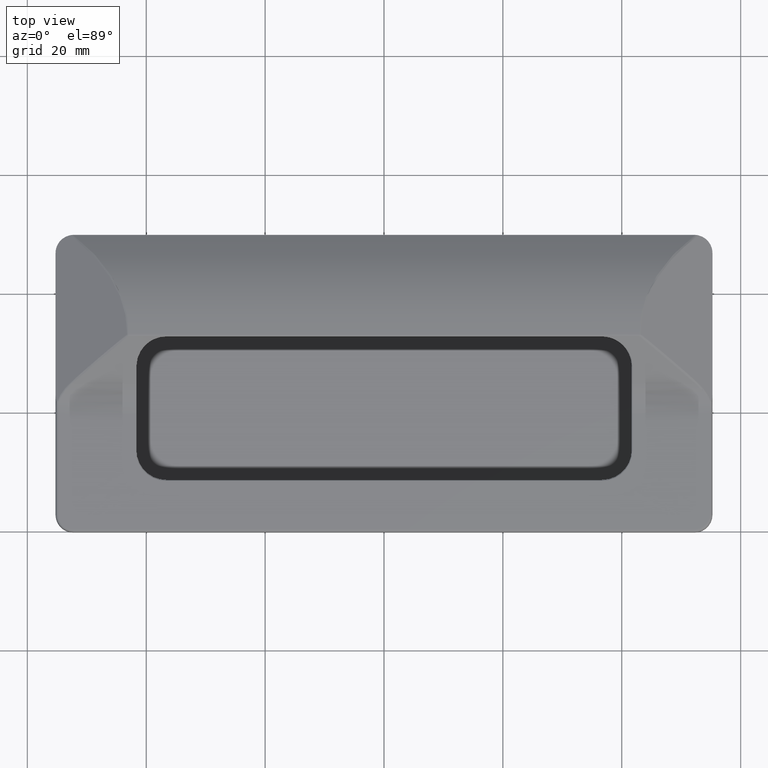
[diagram: clean part render]
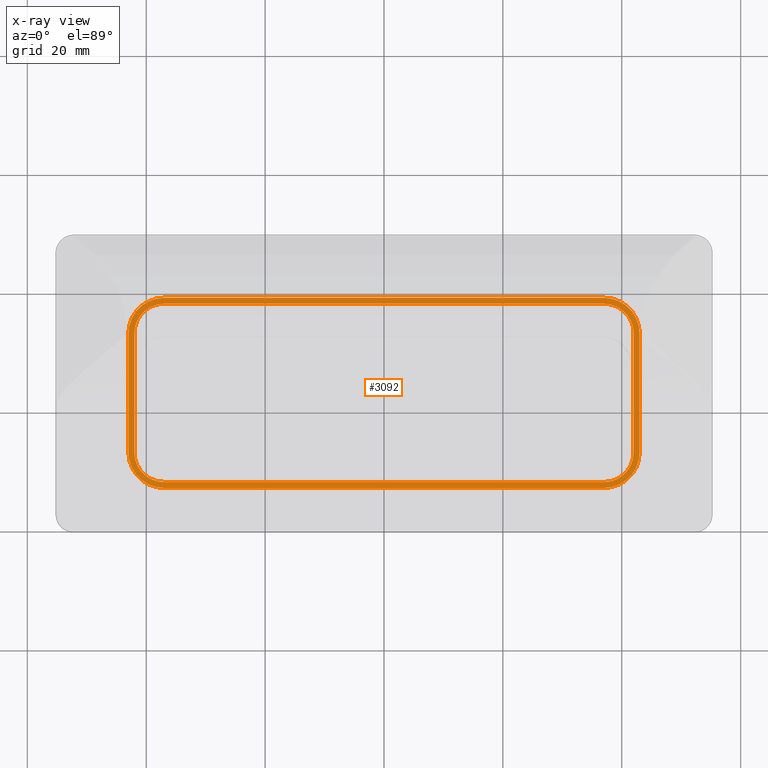
[diagram: x-ray — body ghosted, one internal face saturated and labeled with its STEP entity id]
A machine part, top view, then the same camera in x-ray: the body is ghosted and one INTERNAL B-rep face — a face not visible from any outside direction — is saturated and labeled: STEP entity #3092.
In plain terms, the highlighted planar face has unit normal (-0, 0, 1).
Its self-contained STEP definition (entity closure, byte-faithful):
#48=FACE_BOUND('',#1077,.T.);
#116=PLANE('',#3450);
#354=LINE('',#5610,#592);
#358=LINE('',#5622,#596);
#362=LINE('',#5634,#600);
#366=LINE('',#5645,#604);
#371=LINE('',#5657,#609);
#374=LINE('',#5665,#612);
#377=LINE('',#5673,#615);
#379=LINE('',#5679,#617);
#592=VECTOR('',#4319,20.);
#596=VECTOR('',#4331,74.);
#600=VECTOR('',#4343,20.);
#604=VECTOR('',#4355,74.);
#609=VECTOR('',#4368,20.);
#612=VECTOR('',#4377,74.);
#615=VECTOR('',#4386,20.);
#617=VECTOR('',#4394,74.);
#884=FACE_OUTER_BOUND('',#1076,.T.);
#1076=EDGE_LOOP('',(#2864,#2865,#2866,#2867,#2868,#2869,#2870,#2871));
#1077=EDGE_LOOP('',(#2872,#2873,#2874,#2875,#2876,#2877,#2878,#2879));
#1257=CIRCLE('',#3422,5.);
#1259=CIRCLE('',#3426,5.);
#1261=CIRCLE('',#3430,5.00000000000001);
#1263=CIRCLE('',#3434,5.00000000000001);
#1265=CIRCLE('',#3439,6.);
#1266=CIRCLE('',#3442,6.);
#1267=CIRCLE('',#3445,6.00000000000001);
#1268=CIRCLE('',#3448,6.00000000000001);
#1533=VERTEX_POINT('',#5600);
#1534=VERTEX_POINT('',#5601);
#1537=VERTEX_POINT('',#5609);
#1539=VERTEX_POINT('',#5615);
#1541=VERTEX_POINT('',#5621);
#1543=VERTEX_POINT('',#5627);
#1545=VERTEX_POINT('',#5633);
#1547=VERTEX_POINT('',#5639);
#1549=VERTEX_POINT('',#5649);
#1550=VERTEX_POINT('',#5651);
#1551=VERTEX_POINT('',#5655);
#1552=VERTEX_POINT('',#5659);
#1553=VERTEX_POINT('',#5663);
#1554=VERTEX_POINT('',#5667);
#1555=VERTEX_POINT('',#5671);
#1556=VERTEX_POINT('',#5675);
#1965=EDGE_CURVE('',#1533,#1534,#1257,.T.);
#1969=EDGE_CURVE('',#1537,#1533,#354,.T.);
#1972=EDGE_CURVE('',#1539,#1537,#1259,.T.);
#1975=EDGE_CURVE('',#1541,#1539,#358,.T.);
#1978=EDGE_CURVE('',#1543,#1541,#1261,.T.);
#1981=EDGE_CURVE('',#1545,#1543,#362,.T.);
#1984=EDGE_CURVE('',#1547,#1545,#1263,.T.);
#1987=EDGE_CURVE('',#1534,#1547,#366,.T.);
#1990=EDGE_CURVE('',#1549,#1550,#1265,.T.);
#1993=EDGE_CURVE('',#1551,#1549,#371,.T.);
#1995=EDGE_CURVE('',#1552,#1551,#1266,.T.);
#1997=EDGE_CURVE('',#1553,#1552,#374,.T.);
#1999=EDGE_CURVE('',#1554,#1553,#1267,.T.);
#2001=EDGE_CURVE('',#1555,#1554,#377,.T.);
#2003=EDGE_CURVE('',#1556,#1555,#1268,.T.);
#2004=EDGE_CURVE('',#1550,#1556,#379,.T.);
#2864=ORIENTED_EDGE('',*,*,#2004,.F.);
#2865=ORIENTED_EDGE('',*,*,#1990,.F.);
#2866=ORIENTED_EDGE('',*,*,#1993,.F.);
#2867=ORIENTED_EDGE('',*,*,#1995,.F.);
#2868=ORIENTED_EDGE('',*,*,#1997,.F.);
#2869=ORIENTED_EDGE('',*,*,#1999,.F.);
#2870=ORIENTED_EDGE('',*,*,#2001,.F.);
#2871=ORIENTED_EDGE('',*,*,#2003,.F.);
#2872=ORIENTED_EDGE('',*,*,#1965,.T.);
#2873=ORIENTED_EDGE('',*,*,#1987,.T.);
#2874=ORIENTED_EDGE('',*,*,#1984,.T.);
#2875=ORIENTED_EDGE('',*,*,#1981,.T.);
#2876=ORIENTED_EDGE('',*,*,#1978,.T.);
#2877=ORIENTED_EDGE('',*,*,#1975,.T.);
#2878=ORIENTED_EDGE('',*,*,#1972,.T.);
#2879=ORIENTED_EDGE('',*,*,#1969,.T.);
#3092=ADVANCED_FACE('',(#884,#48),#116,.T.);
#3422=AXIS2_PLACEMENT_3D('',#5602,#4311,#4312);
#3426=AXIS2_PLACEMENT_3D('',#5616,#4324,#4325);
#3430=AXIS2_PLACEMENT_3D('',#5628,#4336,#4337);
#3434=AXIS2_PLACEMENT_3D('',#5640,#4348,#4349);
#3439=AXIS2_PLACEMENT_3D('',#5652,#4362,#4363);
#3442=AXIS2_PLACEMENT_3D('',#5661,#4372,#4373);
#3445=AXIS2_PLACEMENT_3D('',#5669,#4381,#4382);
#3448=AXIS2_PLACEMENT_3D('',#5677,#4390,#4391);
#3450=AXIS2_PLACEMENT_3D('',#5680,#4395,#4396);
#4311=DIRECTION('center_axis',(0.,0.,-1.));
#4312=DIRECTION('ref_axis',(0.,1.,0.));
#4319=DIRECTION('',(0.,1.,0.));
#4324=DIRECTION('center_axis',(0.,0.,-1.));
#4325=DIRECTION('ref_axis',(-1.,0.,0.));
#4331=DIRECTION('',(-1.,-2.40048221540574E-16,0.));
#4336=DIRECTION('center_axis',(0.,0.,-1.));
#4337=DIRECTION('ref_axis',(0.,-1.,0.));
#4343=DIRECTION('',(0.,-1.,0.));
#4348=DIRECTION('center_axis',(0.,0.,-1.));
#4349=DIRECTION('ref_axis',(1.,0.,0.));
#4355=DIRECTION('',(1.,2.40048221540574E-16,0.));
#4362=DIRECTION('center_axis',(0.,0.,-1.));
#4363=DIRECTION('ref_axis',(0.,1.,0.));
#4368=DIRECTION('',(0.,1.,0.));
#4372=DIRECTION('center_axis',(0.,0.,-1.));
#4373=DIRECTION('ref_axis',(-1.,0.,0.));
#4377=DIRECTION('',(-1.,-1.20024110770287E-16,0.));
#4381=DIRECTION('center_axis',(0.,0.,-1.));
#4382=DIRECTION('ref_axis',(0.,-1.,0.));
#4386=DIRECTION('',(0.,-1.,0.));
#4390=DIRECTION('center_axis',(0.,0.,-1.));
#4391=DIRECTION('ref_axis',(1.,0.,0.));
#4394=DIRECTION('',(1.,1.20024110770287E-16,0.));
#4395=DIRECTION('center_axis',(0.,0.,1.));
#4396=DIRECTION('ref_axis',(1.,0.,0.));
#5600=CARTESIAN_POINT('',(-42.,10.,-2.3));
#5601=CARTESIAN_POINT('',(-37.,15.,-2.3));
#5602=CARTESIAN_POINT('Origin',(-37.,10.,-2.3));
#5609=CARTESIAN_POINT('',(-42.,-10.,-2.3));
#5610=CARTESIAN_POINT('',(-42.,-5.,-2.3));
#5615=CARTESIAN_POINT('',(-37.,-15.,-2.3));
#5616=CARTESIAN_POINT('Origin',(-37.,-10.,-2.3));
#5621=CARTESIAN_POINT('',(37.,-15.,-2.3));
#5622=CARTESIAN_POINT('',(18.5,-15.,-2.3));
#5627=CARTESIAN_POINT('',(42.,-10.,-2.3));
#5628=CARTESIAN_POINT('Origin',(37.,-10.,-2.3));
#5633=CARTESIAN_POINT('',(42.,10.,-2.3));
#5634=CARTESIAN_POINT('',(42.,5.,-2.3));
#5639=CARTESIAN_POINT('',(37.,15.,-2.3));
#5640=CARTESIAN_POINT('Origin',(37.,10.,-2.3));
#5645=CARTESIAN_POINT('',(-18.5,15.,-2.3));
#5649=CARTESIAN_POINT('',(-43.,10.,-2.3));
#5651=CARTESIAN_POINT('',(-37.,16.,-2.3));
#5652=CARTESIAN_POINT('Origin',(-37.,10.,-2.3));
#5655=CARTESIAN_POINT('',(-43.,-10.,-2.3));
#5657=CARTESIAN_POINT('',(-43.,10.,-2.3));
#5659=CARTESIAN_POINT('',(-37.,-16.,-2.3));
#5661=CARTESIAN_POINT('Origin',(-37.,-10.,-2.3));
#5663=CARTESIAN_POINT('',(37.,-16.,-2.3));
#5665=CARTESIAN_POINT('',(-37.,-16.,-2.3));
#5667=CARTESIAN_POINT('',(43.,-10.,-2.3));
#5669=CARTESIAN_POINT('Origin',(37.,-10.,-2.3));
#5671=CARTESIAN_POINT('',(43.,10.,-2.3));
#5673=CARTESIAN_POINT('',(43.,-10.,-2.3));
#5675=CARTESIAN_POINT('',(37.,16.,-2.3));
#5677=CARTESIAN_POINT('Origin',(37.,10.,-2.3));
#5679=CARTESIAN_POINT('',(37.,16.,-2.3));
#5680=CARTESIAN_POINT('Origin',(2.92603894635371E-15,-3.0800409961618E-16,
-2.3));